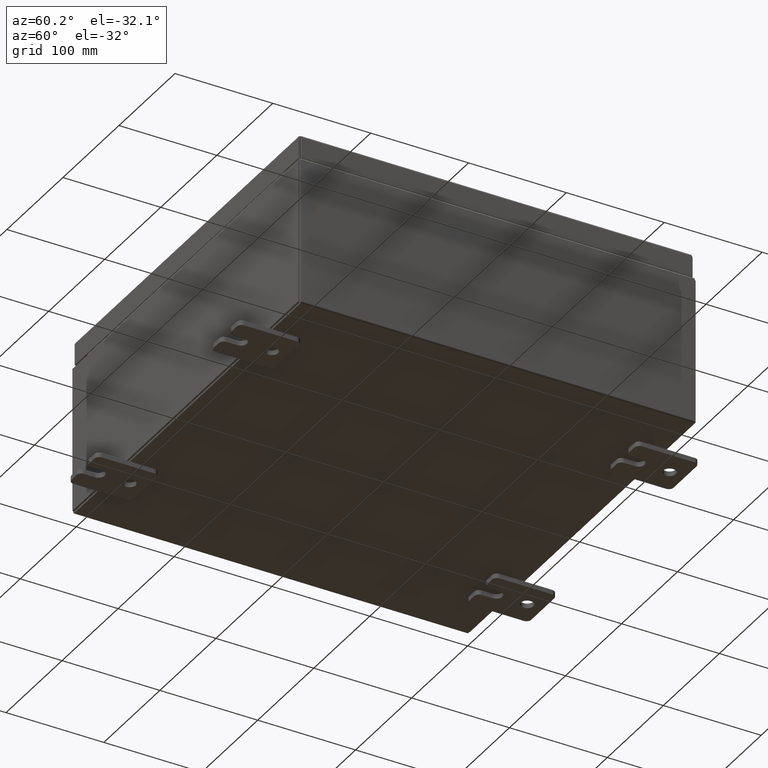
[diagram: clean part render]
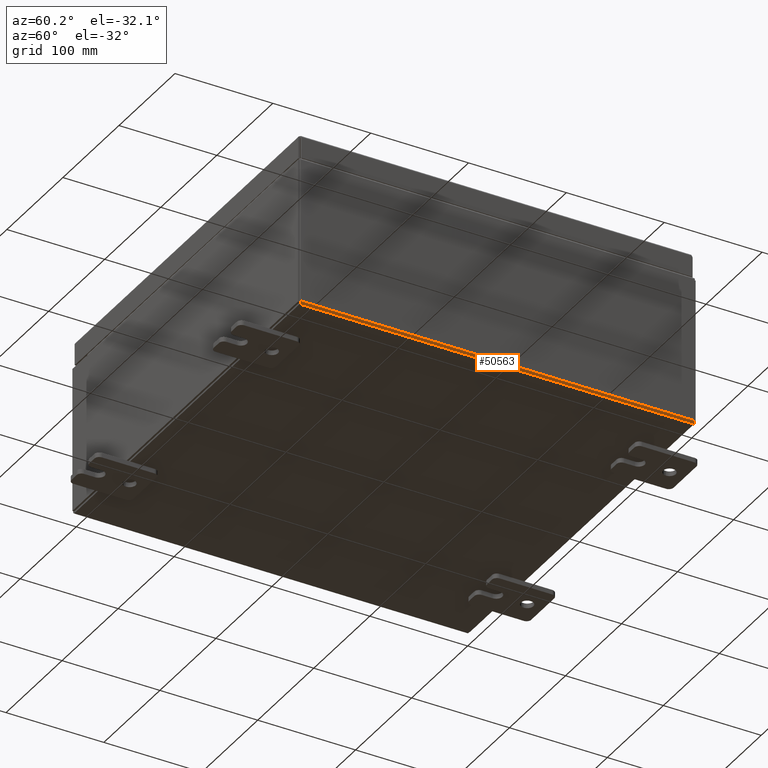
[diagram: same view with one face highlighted and labeled with its STEP entity id]
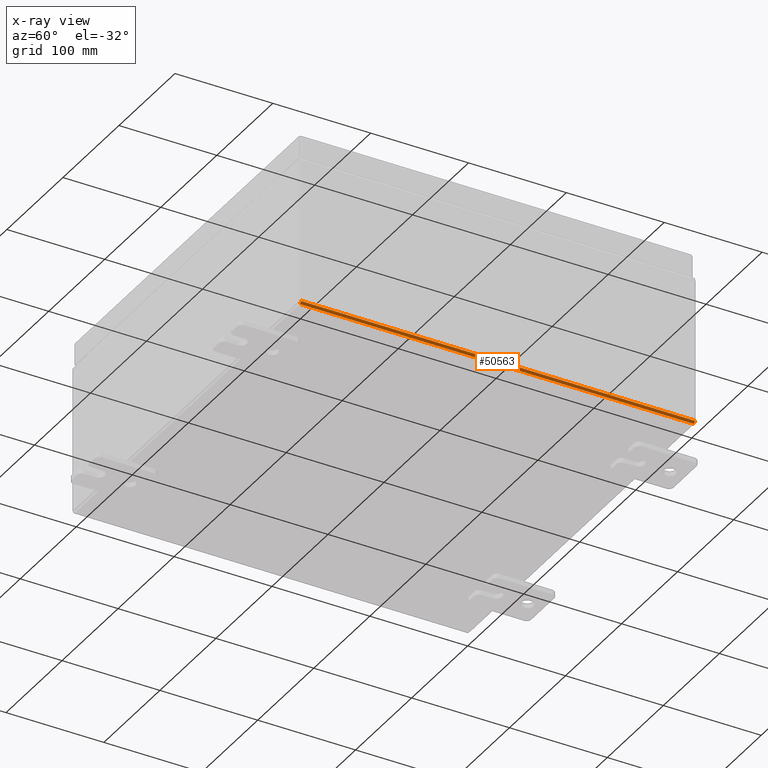
[diagram: x-ray of the same camera — body ghosted, the highlighted face saturated]
A machine part, auxiliary view. The second image highlights one B-rep face of the part: STEP entity #50563.
The next image is the same camera in x-ray: the body ghosted, the highlighted face saturated — about 0% of this face is hidden behind the body in this view.
In plain terms, the highlighted cylindrical surface (edge-blend (fillet) strip) has radius 2.2276 mm, axis along (0, 1, 0).
Its self-contained STEP definition (entity closure, byte-faithful):
#211 = ORIENTED_EDGE ( 'NONE', *, *, #19733, .F. ) ;
#2845 = CARTESIAN_POINT ( 'NONE',  ( 7.912299999999998300, 7.925300000000000000, -0.07469999999999994700 ) ) ;
#6890 = EDGE_CURVE ( 'NONE', #50169, #59762, #16764, .T. ) ;
#14983 = EDGE_CURVE ( 'NONE', #59762, #51099, #43965, .T. ) ;
#15622 = VECTOR ( 'NONE', #57146, 39.37007874015748100 ) ;
#16563 = DIRECTION ( 'NONE',  ( -0.0000000000000000000, -1.000000000000000000, -0.0000000000000000000 ) ) ;
#16764 = CIRCLE ( 'NONE', #20646, 0.08770000000000009700 ) ;
#17758 = DIRECTION ( 'NONE',  ( 0.0000000000000000000, 1.000000000000000000, 0.0000000000000000000 ) ) ;
#18523 = CARTESIAN_POINT ( 'NONE',  ( 7.999999999999999100, -7.925300000000000000, 0.01299999999999984500 ) ) ;
#19733 = EDGE_CURVE ( 'NONE', #51099, #35330, #22290, .T. ) ;
#20646 = AXIS2_PLACEMENT_3D ( 'NONE', #24344, #57717, #29132 ) ;
#21598 = CYLINDRICAL_SURFACE ( 'NONE', #60351, 0.08770000000000026400 ) ;
#22034 = EDGE_LOOP ( 'NONE', ( #44764, #61682, #23546, #211 ) ) ;
#22290 = CIRCLE ( 'NONE', #34216, 0.08770000000000009700 ) ;
#22575 = CARTESIAN_POINT ( 'NONE',  ( 7.912299999999998300, 7.925300000000000000, 0.01300000000000015200 ) ) ;
#23546 = ORIENTED_EDGE ( 'NONE', *, *, #42807, .T. ) ;
#24344 = CARTESIAN_POINT ( 'NONE',  ( 7.912299999999998300, 7.925300000000000000, 0.01300000000000015200 ) ) ;
#26985 = CARTESIAN_POINT ( 'NONE',  ( 7.912299999999998300, 7.925300000000000000, -0.07469999999999994700 ) ) ;
#27124 = DIRECTION ( 'NONE',  ( 1.000000000000000000, 0.0000000000000000000, -3.504366012397134600E-015 ) ) ;
#29132 = DIRECTION ( 'NONE',  ( 0.0000000000000000000, 0.0000000000000000000, 1.000000000000000000 ) ) ;
#29786 = LINE ( 'NONE', #52324, #15622 ) ;
#31209 = CARTESIAN_POINT ( 'NONE',  ( 7.912299999999998300, -7.925300000000000900, -0.07470000000000000300 ) ) ;
#34216 = AXIS2_PLACEMENT_3D ( 'NONE', #45101, #16563, #49892 ) ;
#35330 = VERTEX_POINT ( 'NONE', #18523 ) ;
#40924 = DIRECTION ( 'NONE',  ( -0.0000000000000000000, -1.000000000000000000, -0.0000000000000000000 ) ) ;
#42807 = EDGE_CURVE ( 'NONE', #50169, #35330, #29786, .T. ) ;
#43965 = LINE ( 'NONE', #2845, #58168 ) ;
#44764 = ORIENTED_EDGE ( 'NONE', *, *, #14983, .F. ) ;
#45101 = CARTESIAN_POINT ( 'NONE',  ( 7.912299999999998300, -7.925300000000000000, 0.01300000000000015200 ) ) ;
#48406 = FACE_OUTER_BOUND ( 'NONE', #22034, .T. ) ;
#49892 = DIRECTION ( 'NONE',  ( 0.0000000000000000000, 0.0000000000000000000, 1.000000000000000000 ) ) ;
#50169 = VERTEX_POINT ( 'NONE', #56257 ) ;
#50563 = ADVANCED_FACE ( 'NONE', ( #48406 ), #21598, .T. ) ;
#51099 = VERTEX_POINT ( 'NONE', #31209 ) ;
#52324 = CARTESIAN_POINT ( 'NONE',  ( 7.999999999999999100, -7.925300000000000000, 0.01299999999999984700 ) ) ;
#56257 = CARTESIAN_POINT ( 'NONE',  ( 7.999999999999999100, 7.925300000000000000, 0.01299999999999984700 ) ) ;
#57146 = DIRECTION ( 'NONE',  ( -0.0000000000000000000, -1.000000000000000000, -0.0000000000000000000 ) ) ;
#57717 = DIRECTION ( 'NONE',  ( 0.0000000000000000000, 1.000000000000000000, 0.0000000000000000000 ) ) ;
#58168 = VECTOR ( 'NONE', #40924, 39.37007874015748100 ) ;
#59762 = VERTEX_POINT ( 'NONE', #26985 ) ;
#60351 = AXIS2_PLACEMENT_3D ( 'NONE', #22575, #17758, #27124 ) ;
#61682 = ORIENTED_EDGE ( 'NONE', *, *, #6890, .F. ) ;